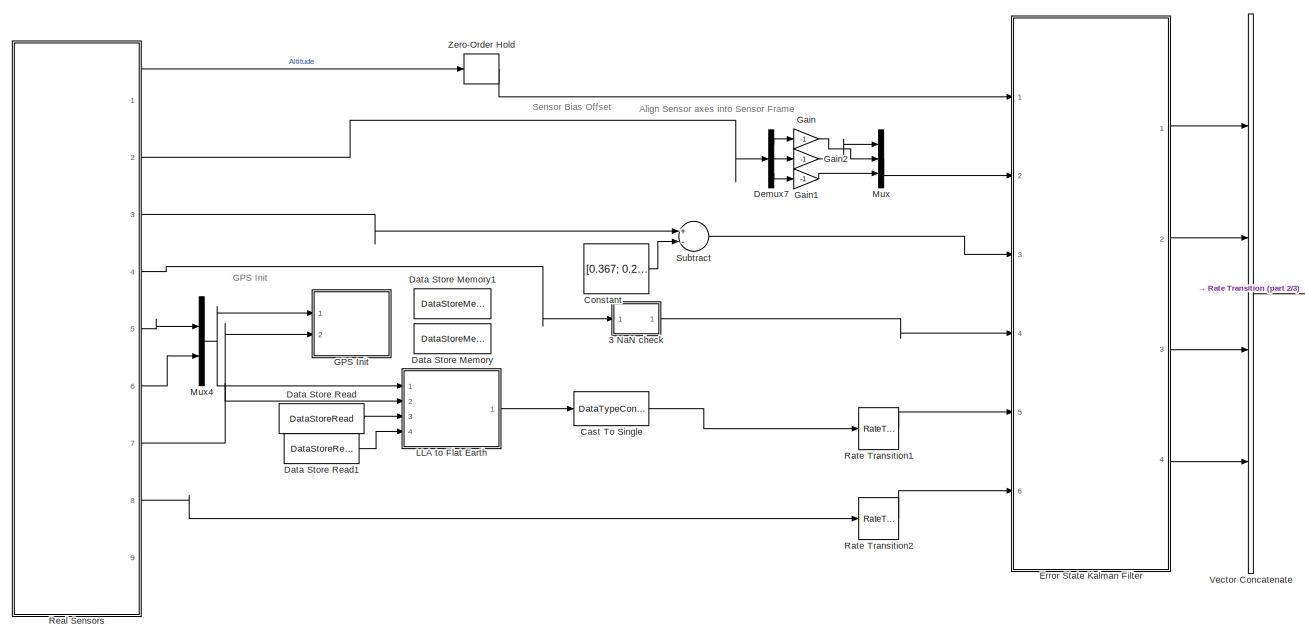
[diagram: root canvas - part 1/3, top center region]
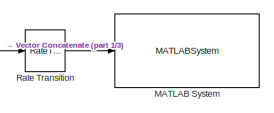
[diagram: root canvas - part 2/3, top right region]
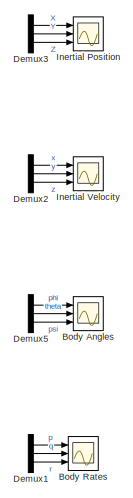
[diagram: root canvas - part 3/3, bottom right region]
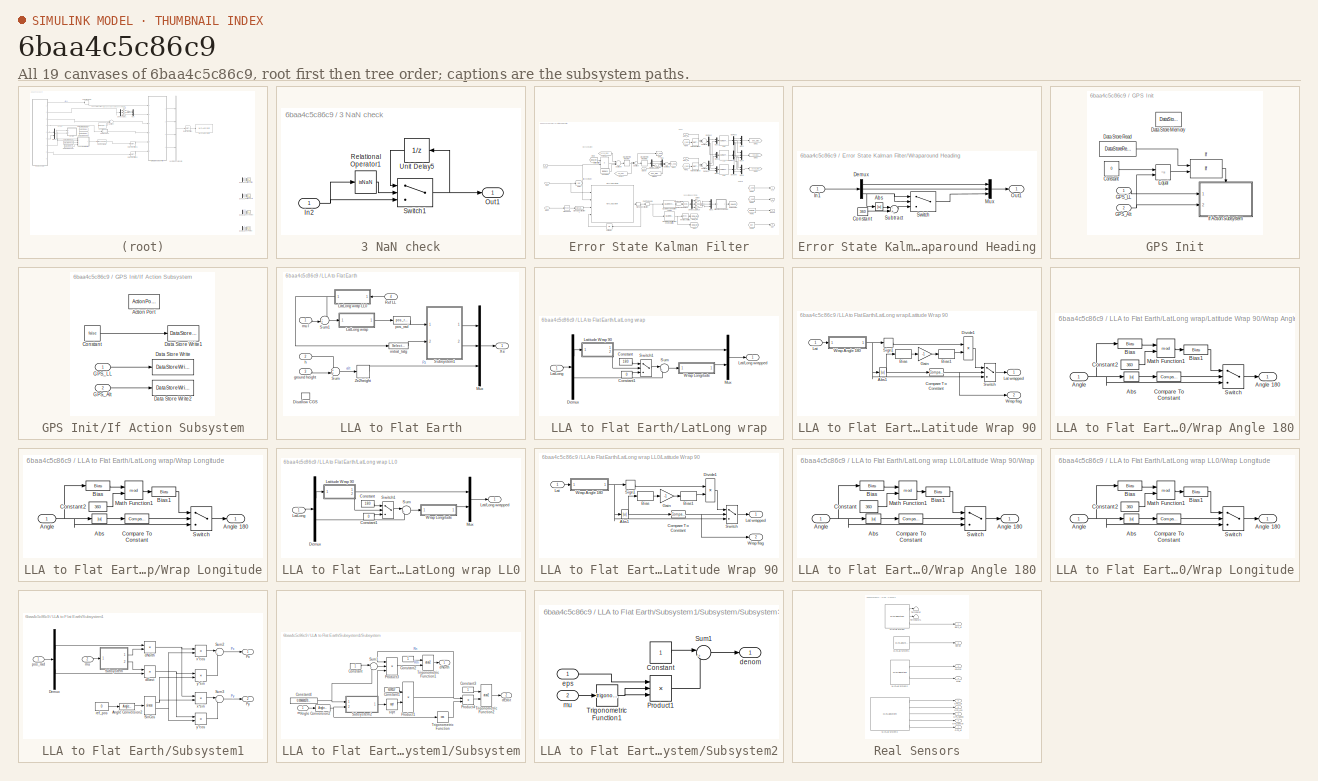
[diagram: thumbnail index - all 19 canvases of the model, root first then tree order]
MODEL slx_6baa4c5c86c9
KIND model
CONFIG AbsTol = auto
CONFIG EnableMultiTasking = on
CONFIG FixedStep = auto
CONFIG MaxStep = auto
CONFIG MinStep = auto
CONFIG RelTol = 1e-3
CONFIG SampleTimeConstraint = Unconstrained
CONFIG Solver = FixedStepAuto
CONFIG SolverName = FixedStepAuto
CONFIG StartTime = 0.0
CONFIG StopTime = inf
WORKSPACE source: MAT-file member
WORKSPACE MCOS: class17 (value not decoded)
WORKSPACE sensorProcessNoiseMatrix = [1 0 0 0.02 0 0 0.0002 0 0 0 0 0 ... (225 elements, 15x15)]
BLOCK [SubSystem] 3 NaN check
  Ports = [1, 1]
  RequestExecContextInheritance = off
BLOCK [Inport] 3 NaN check/In2
  IconDisplay = Port number
BLOCK [Outport] 3 NaN check/Out1
  IconDisplay = Port number
BLOCK [RelationalOperator] 3 NaN check/Relational Operator1
  InputSameDT = off
  Operator = isNaN
  OutDataTypeStr = boolean
  Ports = [1, 1]
  RndMeth = Simplest
BLOCK [Switch] 3 NaN check/Switch1
  Criteria = u2 ~= 0
  InputSameDT = off
  SaturateOnIntegerOverflow = off
BLOCK [UnitDelay] 3 NaN check/Unit Delay5
  HasFrameUpgradeWarning = on
  InitialCondition = [0; 0; 0]
  SampleTime = -1
BLOCK [Scope] Body Angles
  Commented = on
  Floating = off
  NumInputPorts = 3
  Ports = [3]
  ScopeSpecificationString = Simulink.scopes.TimeScopeBlockCfg('CurrentConfiguration', extmgr.ConfigurationSet(extmgr.Configuration('Core','General UI',true),extmgr.Configuration('Core','Source UI',true),extmgr.Configuration('Sources','WiredSimulink',true,'DataLoggingVariableName','ScopeData1'),extmgr.Configuration('Visuals','Time Domain',true,'SerializedDisplays',{struct('MinYLimReal','-60.39943','MaxYLimReal','406.57107','Y...<+1507ch>
BLOCK [Scope] Body Rates
  Commented = on
  Floating = off
  NumInputPorts = 3
  Ports = [3]
  ScopeSpecificationString = Simulink.scopes.TimeScopeBlockCfg('CurrentConfiguration', extmgr.ConfigurationSet(extmgr.Configuration('Core','General UI',true),extmgr.Configuration('Core','Source UI',true),extmgr.Configuration('Sources','WiredSimulink',true,'DataLoggingVariableName','ScopeData2'),extmgr.Configuration('Visuals','Time Domain',true,'SerializedDisplays',{struct('MinYLimReal','-3.28505','MaxYLimReal','2.55787','YLab...<+1490ch>
BLOCK [DataTypeConversion] Cast To Single
  OutDataTypeStr = single
  RndMeth = Simplest
  SaturateOnIntegerOverflow = off
BLOCK [Constant] Constant
  Value = [0.367; 0.248; -0.0955]
  VectorParams1D = off
BLOCK [DataStoreMemory] Data Store Memory
  DataStoreName = GPS_ref_height
  OutDataTypeStr = single
  ReadBeforeWriteMsg = warning
  ShowAdditionalParam = off
  SignalType = real
  WriteAfterReadMsg = warning
  WriteAfterWriteMsg = warning
BLOCK [DataStoreMemory] Data Store Memory1
  DataStoreName = GPS_Init_LL
  InitialValue = [0 0]
  OutDataTypeStr = single
  ReadBeforeWriteMsg = warning
  ShowAdditionalParam = off
  WriteAfterReadMsg = warning
  WriteAfterWriteMsg = warning
BLOCK [DataStoreRead] Data Store Read
  DataStoreElements = GPS_ref_height
  DataStoreName = GPS_ref_height
  Ports = [0, 1]
BLOCK [DataStoreRead] Data Store Read1
  DataStoreName = GPS_Init_LL
  Ports = [0, 1]
BLOCK [Demux] Demux1
  Commented = on
  DisplayOption = bar
  Outputs = 3
  Ports = [1, 3]
BLOCK [Demux] Demux2
  Commented = on
  DisplayOption = bar
  Outputs = 3
  Ports = [1, 3]
BLOCK [Demux] Demux3
  Commented = on
  DisplayOption = bar
  Outputs = 3
  Ports = [1, 3]
BLOCK [Demux] Demux5
  Commented = on
  DisplayOption = bar
  Outputs = 3
  Ports = [1, 3]
BLOCK [Demux] Demux7
  DisplayOption = bar
  Outputs = 3
  Ports = [1, 3]
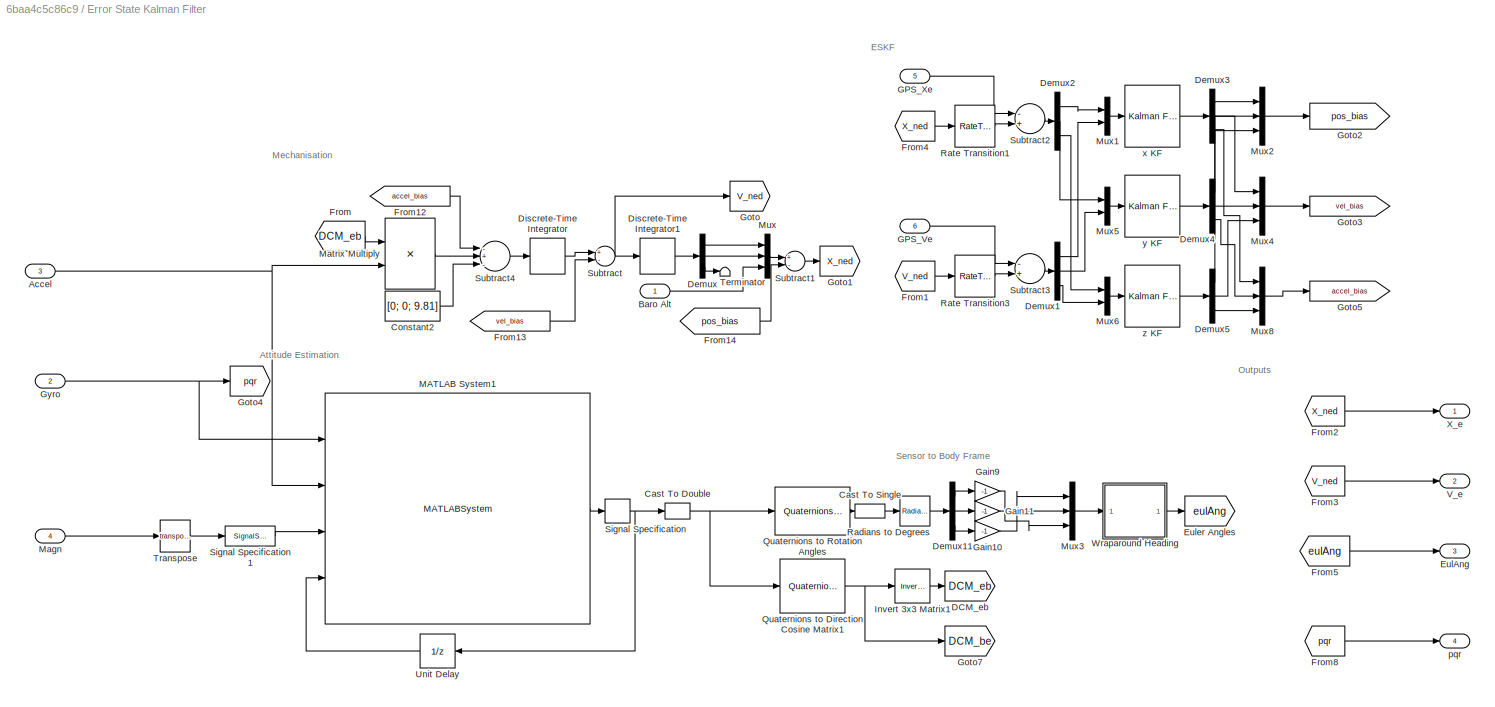
BLOCK [SubSystem] Error State Kalman Filter
  Ports = [6, 4]
  RequestExecContextInheritance = off
BLOCK [Inport] Error State Kalman Filter/Accel
  IconDisplay = Port number
  Port = 3
BLOCK [Inport] Error State Kalman Filter/Baro Alt
  IconDisplay = Port number
BLOCK [DataTypeConversion] Error State Kalman Filter/Cast To Double
  OutDataTypeStr = double
  RndMeth = Floor
  SaturateOnIntegerOverflow = off
BLOCK [DataTypeConversion] Error State Kalman Filter/Cast To Single
  OutDataTypeStr = single
  RndMeth = Floor
  SaturateOnIntegerOverflow = off
BLOCK [Constant] Error State Kalman Filter/Constant2
  OutDataTypeStr = single
  Value = [0; 0; 9.81]
  VectorParams1D = off
BLOCK [Goto] Error State Kalman Filter/DCM_eb
  GotoTag = DCM_eb
BLOCK [Demux] Error State Kalman Filter/Demux
  DisplayOption = bar
  Outputs = 3
  Ports = [1, 3]
BLOCK [Demux] Error State Kalman Filter/Demux1
  DisplayOption = bar
  Outputs = 3
  Ports = [1, 3]
BLOCK [Demux] Error State Kalman Filter/Demux11
  DisplayOption = bar
  Outputs = 3
  Ports = [1, 3]
BLOCK [Demux] Error State Kalman Filter/Demux2
  DisplayOption = bar
  Outputs = 3
  Ports = [1, 3]
BLOCK [Demux] Error State Kalman Filter/Demux3
  DisplayOption = bar
  Outputs = 3
  Ports = [1, 3]
BLOCK [Demux] Error State Kalman Filter/Demux4
  DisplayOption = bar
  Outputs = 3
  Ports = [1, 3]
BLOCK [Demux] Error State Kalman Filter/Demux5
  DisplayOption = bar
  Outputs = 3
  Ports = [1, 3]
BLOCK [DiscreteIntegrator] Error State Kalman Filter/Discrete-Time Integrator
  ICPrevOutput = DiscIntNeverNeededParam
  ICPrevScaledInput = DiscIntNeverNeededParam
  InitialConditionSetting = Auto
  Ports = [1, 1]
  SampleTime = -1
  gainval = 1
BLOCK [DiscreteIntegrator] Error State Kalman Filter/Discrete-Time Integrator1
  ICPrevOutput = DiscIntNeverNeededParam
  ICPrevScaledInput = DiscIntNeverNeededParam
  InitialConditionSetting = Auto
  OutDataTypeStr = single
  Ports = [1, 1]
  SampleTime = -1
  gainval = 1
BLOCK [Outport] Error State Kalman Filter/EulAng
  IconDisplay = Port number
  Port = 3
BLOCK [Goto] Error State Kalman Filter/Euler Angles
  GotoTag = eulAng
BLOCK [From] Error State Kalman Filter/From
  GotoTag = DCM_eb
BLOCK [From] Error State Kalman Filter/From1
  GotoTag = V_ned
BLOCK [From] Error State Kalman Filter/From12
  GotoTag = accel_bias
BLOCK [From] Error State Kalman Filter/From13
  GotoTag = vel_bias
BLOCK [From] Error State Kalman Filter/From14
  GotoTag = pos_bias
BLOCK [From] Error State Kalman Filter/From2
  GotoTag = X_ned
BLOCK [From] Error State Kalman Filter/From3
  GotoTag = V_ned
BLOCK [From] Error State Kalman Filter/From4
  GotoTag = X_ned
BLOCK [From] Error State Kalman Filter/From5
  GotoTag = eulAng
BLOCK [From] Error State Kalman Filter/From8
  GotoTag = pqr
BLOCK [Inport] Error State Kalman Filter/GPS_Ve
  IconDisplay = Port number
  Port = 6
  VarSizeSig = No
BLOCK [Inport] Error State Kalman Filter/GPS_Xe
  IconDisplay = Port number
  Port = 5
  VarSizeSig = No
BLOCK [Gain] Error State Kalman Filter/Gain10
  Commented = through
  Gain = -1
  OutDataTypeStr = Inherit: Inherit via internal rule
  ParamDataTypeStr = Inherit: Inherit via internal rule
  SaturateOnIntegerOverflow = off
BLOCK [Gain] Error State Kalman Filter/Gain11
  Gain = -1
  OutDataTypeStr = Inherit: Inherit via internal rule
  ParamDataTypeStr = Inherit: Inherit via internal rule
  SaturateOnIntegerOverflow = off
BLOCK [Gain] Error State Kalman Filter/Gain9
  Gain = -1
  OutDataTypeStr = Inherit: Inherit via internal rule
  ParamDataTypeStr = Inherit: Inherit via internal rule
  SaturateOnIntegerOverflow = off
BLOCK [Goto] Error State Kalman Filter/Goto
  GotoTag = V_ned
BLOCK [Goto] Error State Kalman Filter/Goto1
  GotoTag = X_ned
BLOCK [Goto] Error State Kalman Filter/Goto2
  GotoTag = pos_bias
BLOCK [Goto] Error State Kalman Filter/Goto3
  GotoTag = vel_bias
BLOCK [Goto] Error State Kalman Filter/Goto4
  GotoTag = pqr
BLOCK [Goto] Error State Kalman Filter/Goto5
  GotoTag = accel_bias
BLOCK [Goto] Error State Kalman Filter/Goto7
  GotoTag = DCM_be
BLOCK [Inport] Error State Kalman Filter/Gyro
  IconDisplay = Port number
  Port = 2
BLOCK [Reference] Error State Kalman Filter/Invert 3x3 Matrix1  REF=aerolibutil/Invert 
3x3 Matrix
  Ports = [1, 1]
  SourceBlock = aerolibutil/Invert \n3x3 Matrix
  SourceProductBaseCode = AE
  SourceProductName = Aerospace Blockset
  SourceType = Invert 3x3 Matrix
BLOCK [MATLABSystem] Error State Kalman Filter/MATLAB System1
  Beta = 1
  MaskDisplay = disp('MadgwickAHRSFilter');\nport_label('input',1,'Gyroscope');\nport_label('input',2,'Accelerometer');\nport_label('input',3,'Magnetometer');\nport_label('input',4,'q');\nport_label('output',1,'quat');
  MaskType = MadgwickAHRSFilter
  Ports = [4, 1]
  SamplePeriod = sensorSampleTime
  SimulateUsing = Code generation
  System = MadgwickAHRSFilter
BLOCK [Inport] Error State Kalman Filter/Magn
  IconDisplay = Port number
  Port = 4
BLOCK [Product] Error State Kalman Filter/Matrix Multiply
  InputSameDT = off
  Multiplication = Matrix(*)
  OutDataTypeStr = single
  Ports = [2, 1]
  RndMeth = Simplest
  SaturateOnIntegerOverflow = off
BLOCK [Mux] Error State Kalman Filter/Mux
  DisplayOption = bar
  Inputs = 3
  Ports = [3, 1]
BLOCK [Mux] Error State Kalman Filter/Mux1
  DisplayOption = bar
  Inputs = 2
  Ports = [2, 1]
BLOCK [Mux] Error State Kalman Filter/Mux2
  DisplayOption = bar
  Inputs = 3
  Ports = [3, 1]
BLOCK [Mux] Error State Kalman Filter/Mux3
  DisplayOption = bar
  Inputs = 3
  Ports = [3, 1]
BLOCK [Mux] Error State Kalman Filter/Mux4
  DisplayOption = bar
  Inputs = 3
  Ports = [3, 1]
BLOCK [Mux] Error State Kalman Filter/Mux5
  DisplayOption = bar
  Inputs = 2
  Ports = [2, 1]
BLOCK [Mux] Error State Kalman Filter/Mux6
  DisplayOption = bar
  Inputs = 2
  Ports = [2, 1]
BLOCK [Mux] Error State Kalman Filter/Mux8
  DisplayOption = bar
  Inputs = 3
  Ports = [3, 1]
BLOCK [Reference] Error State Kalman Filter/Quaternions to Direction Cosine Matrix1  REF=sharedtransform/Quaternions to 
Direction Cosine Matrix
  Ports = [1, 1]
  SourceBlock = sharedtransform/Quaternions to \nDirection Cosine Matrix
  SourceProductBaseCode = AE
  SourceProductName = Aerospace Blockset
  SourceType = Quaternion2DCM
BLOCK [Reference] Error State Kalman Filter/Quaternions to Rotation Angles  REF=sharedtransform/Quaternions to Rotation Angles
  AttributesFormatString = Rotation Order: %<rotationOrder>
  Ports = [1, 1]
  SourceBlock = sharedtransform/Quaternions to Rotation Angles
  SourceProductBaseCode = AE
  SourceProductName = Aerospace Blockset
  SourceType = Quat2Ang
BLOCK [Reference] Error State Kalman Filter/Radians to Degrees  REF=simulink_extras/Transformations/Radians
to Degrees
  Ports = [1, 1]
  SourceBlock = simulink_extras/Transformations/Radians\nto Degrees
  SourceProductBaseCode = SL
  SourceProductName = Simulink
  SourceType = RadiansToDegrees
BLOCK [RateTransition] Error State Kalman Filter/Rate Transition1
  OutPortSampleTime = 1
BLOCK [RateTransition] Error State Kalman Filter/Rate Transition3
  OutPortSampleTime = 1
BLOCK [SignalSpecification] Error State Kalman Filter/Signal Specification
  Dimensions = [1 4]
  OutDataTypeStr = single
  VarSizeSig = No
BLOCK [SignalSpecification] Error State Kalman Filter/Signal Specification1
  Dimensions = [1 3]
  OutDataTypeStr = single
  VarSizeSig = No
BLOCK [Sum] Error State Kalman Filter/Subtract
  InputSameDT = off
  Inputs = +-
  OutDataTypeStr = Inherit: Inherit via internal rule
  Ports = [2, 1]
  SaturateOnIntegerOverflow = off
BLOCK [Sum] Error State Kalman Filter/Subtract1
  InputSameDT = off
  Inputs = +-
  OutDataTypeStr = Inherit: Inherit via internal rule
  Ports = [2, 1]
  SaturateOnIntegerOverflow = off
BLOCK [Sum] Error State Kalman Filter/Subtract2
  AccumDataTypeStr = single
  InputSameDT = off
  Inputs = -+
  OutDataTypeStr = single
  Ports = [2, 1]
  RndMeth = Simplest
  SaturateOnIntegerOverflow = off
BLOCK [Sum] Error State Kalman Filter/Subtract3
  AccumDataTypeStr = single
  InputSameDT = off
  Inputs = -+
  OutDataTypeStr = single
  Ports = [2, 1]
  RndMeth = Simplest
  SaturateOnIntegerOverflow = off
BLOCK [Sum] Error State Kalman Filter/Subtract4
  AccumDataTypeStr = single
  InputSameDT = off
  Inputs = -+-
  OutDataTypeStr = Inherit: Inherit via internal rule
  Ports = [3, 1]
  SaturateOnIntegerOverflow = off
BLOCK [Terminator] Error State Kalman Filter/Terminator
BLOCK [Math] Error State Kalman Filter/Transpose
  Operator = transpose
  Ports = [1, 1]
BLOCK [UnitDelay] Error State Kalman Filter/Unit Delay
  HasFrameUpgradeWarning = on
  InitialCondition = [1 0 0 0]
  SampleTime = sensorSampleTime
BLOCK [Outport] Error State Kalman Filter/V_e
  IconDisplay = Port number
  Port = 2
BLOCK [SubSystem] Error State Kalman Filter/Wraparound Heading
  Ports = [1, 1]
  RequestExecContextInheritance = off
BLOCK [Abs] Error State Kalman Filter/Wraparound Heading/Abs
  SaturateOnIntegerOverflow = off
BLOCK [Constant] Error State Kalman Filter/Wraparound Heading/Constant
  OutDataTypeStr = single
  Value = 360
BLOCK [Demux] Error State Kalman Filter/Wraparound Heading/Demux
  DisplayOption = bar
  Outputs = 3
  Ports = [1, 3]
BLOCK [Inport] Error State Kalman Filter/Wraparound Heading/In1
  IconDisplay = Port number
BLOCK [Mux] Error State Kalman Filter/Wraparound Heading/Mux
  DisplayOption = bar
  Inputs = 3
  Ports = [3, 1]
BLOCK [Outport] Error State Kalman Filter/Wraparound Heading/Out1
  IconDisplay = Port number
BLOCK [Sum] Error State Kalman Filter/Wraparound Heading/Subtract
  InputSameDT = off
  Inputs = -+
  OutDataTypeStr = Inherit: Inherit via internal rule
  Ports = [2, 1]
  SaturateOnIntegerOverflow = off
BLOCK [Switch] Error State Kalman Filter/Wraparound Heading/Switch
  Criteria = u2 > Threshold
  InputSameDT = off
  OutDataTypeStr = single
  SaturateOnIntegerOverflow = off
BLOCK [Outport] Error State Kalman Filter/X_e
  IconDisplay = Port number
BLOCK [Outport] Error State Kalman Filter/pqr
  IconDisplay = Port number
  Port = 4
BLOCK [Reference] Error State Kalman Filter/x KF  REF=ctrlSharedLib/Kalman Filter
  Ports = [1, 1]
  SourceBlock = ctrlSharedLib/Kalman Filter
  SourceProductBaseCode = CT
  SourceProductName = Control System Toolbox
  SourceType = ctrlKalmanFilter
BLOCK [Reference] Error State Kalman Filter/y KF  REF=ctrlSharedLib/Kalman Filter
  Ports = [1, 1]
  SourceBlock = ctrlSharedLib/Kalman Filter
  SourceProductBaseCode = CT
  SourceProductName = Control System Toolbox
  SourceType = ctrlKalmanFilter
BLOCK [Reference] Error State Kalman Filter/z KF  REF=ctrlSharedLib/Kalman Filter
  Ports = [1, 1]
  SourceBlock = ctrlSharedLib/Kalman Filter
  SourceProductBaseCode = CT
  SourceProductName = Control System Toolbox
  SourceType = ctrlKalmanFilter
BLOCK [SubSystem] GPS Init
  Ports = [2]
  RequestExecContextInheritance = off
BLOCK [Constant] GPS Init/Constant
  OutDataTypeStr = single
  Value = 0
BLOCK [DataStoreMemory] GPS Init/Data Store Memory
  DataStoreName = GPS_init
  InitialValue = true
  OutDataTypeStr = boolean
  ReadBeforeWriteMsg = warning
  ShowAdditionalParam = off
  WriteAfterReadMsg = warning
  WriteAfterWriteMsg = warning
BLOCK [DataStoreRead] GPS Init/Data Store Read
  DataStoreElements = GPS_init
  DataStoreName = GPS_init
  Ports = [0, 1]
BLOCK [RelationalOperator] GPS Init/Equal
  InputSameDT = off
  Operator = ~=
  OutDataTypeStr = boolean
  Ports = [2, 1]
  RndMeth = Simplest
BLOCK [Inport] GPS Init/GPS_Alt
  IconDisplay = Port number
  Port = 2
BLOCK [Inport] GPS Init/GPS_LL
  IconDisplay = Port number
BLOCK [If] GPS Init/If
  IfExpression = u1 & u2
  NumInputs = 2
  Ports = [2, 1]
  ShowElse = off
BLOCK [SubSystem] GPS Init/If Action Subsystem
  Ports = [2, 0, 0, 0, 0, 0, 0, 1]
  RequestExecContextInheritance = off
  TreatAsAtomicUnit = on
BLOCK [ActionPort] GPS Init/If Action Subsystem/Action Port
  ActionPortLabel = if(u1 & u2)
BLOCK [Constant] GPS Init/If Action Subsystem/Constant
  Value = false
BLOCK [DataStoreWrite] GPS Init/If Action Subsystem/Data Store Write
  DataStoreName = GPS_Init_LL
  Ports = [1]
BLOCK [DataStoreWrite] GPS Init/If Action Subsystem/Data Store Write1
  DataStoreName = GPS_init
  Ports = [1]
BLOCK [DataStoreWrite] GPS Init/If Action Subsystem/Data Store Write2
  DataStoreElements = GPS_ref_height
  DataStoreName = GPS_ref_height
  Ports = [1]
BLOCK [Inport] GPS Init/If Action Subsystem/GPS_Alt
  IconDisplay = Port number
  Port = 2
BLOCK [Inport] GPS Init/If Action Subsystem/GPS_LL
  IconDisplay = Port number
BLOCK [Gain] Gain
  Gain = -1
  OutDataTypeStr = Inherit: Inherit via internal rule
  ParamDataTypeStr = Inherit: Inherit via internal rule
  SaturateOnIntegerOverflow = off
BLOCK [Gain] Gain1
  Commented = through
  Gain = -1
  OutDataTypeStr = Inherit: Inherit via internal rule
  ParamDataTypeStr = Inherit: Inherit via internal rule
  SaturateOnIntegerOverflow = off
BLOCK [Gain] Gain2
  Commented = through
  Gain = -1
  OutDataTypeStr = Inherit: Inherit via internal rule
  ParamDataTypeStr = Inherit: Inherit via internal rule
  SaturateOnIntegerOverflow = off
BLOCK [Scope] Inertial Position
  Commented = on
  Floating = off
  NumInputPorts = 3
  Ports = [3]
  ScopeSpecificationString = Simulink.scopes.TimeScopeBlockCfg('CurrentConfiguration', extmgr.ConfigurationSet(extmgr.Configuration('Core','General UI',true),extmgr.Configuration('Core','Source UI',true),extmgr.Configuration('Sources','WiredSimulink',true,'DataLoggingVariableName','ScopeData3'),extmgr.Configuration('Visuals','Time Domain',true,'SerializedDisplays',{struct('MinYLimReal','-947970.52148','MaxYLimReal','6253006.7...<+1534ch>
BLOCK [Scope] Inertial Velocity
  Commented = on
  Floating = off
  NumInputPorts = 3
  Ports = [3]
  ScopeSpecificationString = Simulink.scopes.TimeScopeBlockCfg('CurrentConfiguration', extmgr.ConfigurationSet(extmgr.Configuration('Core','General UI',true),extmgr.Configuration('Core','Source UI',true),extmgr.Configuration('Sources','WiredSimulink',true),extmgr.Configuration('Visuals','Time Domain',true,'SerializedDisplays',{struct('MinYLimReal','-478.6962','MaxYLimReal','332.81537','YLabelReal','','MinYLimMag',' 0.00000','...<+1463ch>
BLOCK [SubSystem] LLA to Flat Earth
  Ports = [4, 1]
  RequestExecContextInheritance = off
BLOCK [UnitConfiguration] LLA to Flat Earth/Disallow CGS
  AllowAllUnitSystems = off
  UnitSystemsStr = English,SI,SI (extended)
BLOCK [SubSystem] LLA to Flat Earth/LatLong wrap
  AncestorBlock = aerolibtransform2sys/LatLong wrap
  Ports = [1, 1]
  RequestExecContextInheritance = off
BLOCK [SubSystem] LLA to Flat Earth/LatLong wrap LL0
  AncestorBlock = aerolibtransform2sys/LatLong wrap
  Ports = [1, 1]
  RequestExecContextInheritance = off
BLOCK [Constant] LLA to Flat Earth/LatLong wrap LL0/Constant
  OutDataTypeStr = single
  Value = 180
BLOCK [Constant] LLA to Flat Earth/LatLong wrap LL0/Constant1
  OutDataTypeStr = single
  Value = 0
BLOCK [Demux] LLA to Flat Earth/LatLong wrap LL0/Demux
  DisplayOption = bar
  Outputs = 2
  Ports = [1, 2]
BLOCK [Outport] LLA to Flat Earth/LatLong wrap LL0/Lat//Long wrapped
  IconDisplay = Port number
BLOCK [Inport] LLA to Flat Earth/LatLong wrap LL0/LatLong
  IconDisplay = Port number
BLOCK [SubSystem] LLA to Flat Earth/LatLong wrap LL0/Latitude Wrap 90
  AncestorBlock = aerolibtransform2sys/Latitude Wrap 90
  Ports = [1, 2]
  RequestExecContextInheritance = off
BLOCK [Abs] LLA to Flat Earth/LatLong wrap LL0/Latitude Wrap 90/Abs1
  SaturateOnIntegerOverflow = off
BLOCK [Bias] LLA to Flat Earth/LatLong wrap LL0/Latitude Wrap 90/Bias
  Bias = -90
  SaturateOnIntegerOverflow = off
BLOCK [Bias] LLA to Flat Earth/LatLong wrap LL0/Latitude Wrap 90/Bias1
  Bias = +90
  SaturateOnIntegerOverflow = off
BLOCK [Reference] LLA to Flat Earth/LatLong wrap LL0/Latitude Wrap 90/Compare To Constant  REF=simulink/Logic and Bit
Operations/Compare
To Constant
  Ports = [1, 1]
  SourceBlock = simulink/Logic and Bit\nOperations/Compare\nTo Constant
  SourceProductBaseCode = SL
  SourceProductName = Simulink
  SourceType = Compare To Constant
BLOCK [Product] LLA to Flat Earth/LatLong wrap LL0/Latitude Wrap 90/Divide1
  InputSameDT = off
  Inputs = **
  OutDataTypeStr = Inherit: Inherit via internal rule
  Ports = [2, 1]
  RndMeth = Floor
  SaturateOnIntegerOverflow = off
BLOCK [Gain] LLA to Flat Earth/LatLong wrap LL0/Latitude Wrap 90/Gain
  Gain = -1
  OutDataTypeStr = Inherit: Inherit via internal rule
  ParamDataTypeStr = Inherit: Inherit via internal rule
  SaturateOnIntegerOverflow = off
BLOCK [Inport] LLA to Flat Earth/LatLong wrap LL0/Latitude Wrap 90/Lat
  IconDisplay = Port number
BLOCK [Outport] LLA to Flat Earth/LatLong wrap LL0/Latitude Wrap 90/Lat wrapped
  IconDisplay = Port number
BLOCK [Signum] LLA to Flat Earth/LatLong wrap LL0/Latitude Wrap 90/Sign1
BLOCK [Switch] LLA to Flat Earth/LatLong wrap LL0/Latitude Wrap 90/Switch
  Criteria = u2 ~= 0
  InputSameDT = off
  SaturateOnIntegerOverflow = off
BLOCK [SubSystem] LLA to Flat Earth/LatLong wrap LL0/Latitude Wrap 90/Wrap Angle 180
  AncestorBlock = aerolibtransform2sys/Wrap Angle 180
  Ports = [1, 1]
  RequestExecContextInheritance = off
BLOCK [Abs] LLA to Flat Earth/LatLong wrap LL0/Latitude Wrap 90/Wrap Angle 180/Abs
  SaturateOnIntegerOverflow = off
BLOCK [Inport] LLA to Flat Earth/LatLong wrap LL0/Latitude Wrap 90/Wrap Angle 180/Angle
  IconDisplay = Port number
BLOCK [Outport] LLA to Flat Earth/LatLong wrap LL0/Latitude Wrap 90/Wrap Angle 180/Angle 180
  IconDisplay = Port number
BLOCK [Bias] LLA to Flat Earth/LatLong wrap LL0/Latitude Wrap 90/Wrap Angle 180/Bias
  Bias = 180
  SaturateOnIntegerOverflow = off
BLOCK [Bias] LLA to Flat Earth/LatLong wrap LL0/Latitude Wrap 90/Wrap Angle 180/Bias1
  Bias = -180
  SaturateOnIntegerOverflow = off
BLOCK [Reference] LLA to Flat Earth/LatLong wrap LL0/Latitude Wrap 90/Wrap Angle 180/Compare To Constant  REF=simulink/Logic and Bit
Operations/Compare
To Constant
  Ports = [1, 1]
  SourceBlock = simulink/Logic and Bit\nOperations/Compare\nTo Constant
  SourceProductBaseCode = SL
  SourceProductName = Simulink
  SourceType = Compare To Constant
BLOCK [Constant] LLA to Flat Earth/LatLong wrap LL0/Latitude Wrap 90/Wrap Angle 180/Constant
  OutDataTypeStr = single
  Value = 360
BLOCK [Math] LLA to Flat Earth/LatLong wrap LL0/Latitude Wrap 90/Wrap Angle 180/Math Function1
  Operator = mod
  Ports = [2, 1]
BLOCK [Switch] LLA to Flat Earth/LatLong wrap LL0/Latitude Wrap 90/Wrap Angle 180/Switch
  Criteria = u2 ~= 0
  InputSameDT = off
  SaturateOnIntegerOverflow = off
  Threshold = 180
BLOCK [Outport] LLA to Flat Earth/LatLong wrap LL0/Latitude Wrap 90/Wrap flag
  IconDisplay = Port number
  Port = 2
BLOCK [Mux] LLA to Flat Earth/LatLong wrap LL0/Mux
  DisplayOption = bar
  Inputs = 2
  Ports = [2, 1]
BLOCK [Sum] LLA to Flat Earth/LatLong wrap LL0/Sum
  IconShape = round
  InputSameDT = off
  Inputs = |++
  OutDataTypeStr = Inherit: Inherit via internal rule
  Ports = [2, 1]
  SaturateOnIntegerOverflow = off
BLOCK [Switch] LLA to Flat Earth/LatLong wrap LL0/Switch1
  Criteria = u2 ~= 0
  InputSameDT = off
  SaturateOnIntegerOverflow = off
BLOCK [SubSystem] LLA to Flat Earth/LatLong wrap LL0/Wrap Longitude
  AncestorBlock = aerolibtransform2sys/Wrap Angle 180
  Ports = [1, 1]
  RequestExecContextInheritance = off
BLOCK [Abs] LLA to Flat Earth/LatLong wrap LL0/Wrap Longitude/Abs
  SaturateOnIntegerOverflow = off
BLOCK [Inport] LLA to Flat Earth/LatLong wrap LL0/Wrap Longitude/Angle
  IconDisplay = Port number
BLOCK [Outport] LLA to Flat Earth/LatLong wrap LL0/Wrap Longitude/Angle 180
  IconDisplay = Port number
BLOCK [Bias] LLA to Flat Earth/LatLong wrap LL0/Wrap Longitude/Bias
  Bias = 180
  SaturateOnIntegerOverflow = off
BLOCK [Bias] LLA to Flat Earth/LatLong wrap LL0/Wrap Longitude/Bias1
  Bias = -180
  SaturateOnIntegerOverflow = off
BLOCK [Reference] LLA to Flat Earth/LatLong wrap LL0/Wrap Longitude/Compare To Constant  REF=simulink/Logic and Bit
Operations/Compare
To Constant
  Ports = [1, 1]
  SourceBlock = simulink/Logic and Bit\nOperations/Compare\nTo Constant
  SourceProductBaseCode = SL
  SourceProductName = Simulink
  SourceType = Compare To Constant
BLOCK [Constant] LLA to Flat Earth/LatLong wrap LL0/Wrap Longitude/Constant2
  OutDataTypeStr = single
  Value = 360
BLOCK [Math] LLA to Flat Earth/LatLong wrap LL0/Wrap Longitude/Math Function1
  Operator = mod
  Ports = [2, 1]
BLOCK [Switch] LLA to Flat Earth/LatLong wrap LL0/Wrap Longitude/Switch
  Criteria = u2 ~= 0
  InputSameDT = off
  SaturateOnIntegerOverflow = off
  Threshold = 180
BLOCK [Constant] LLA to Flat Earth/LatLong wrap/Constant
  OutDataTypeStr = single
  Value = 180
BLOCK [Constant] LLA to Flat Earth/LatLong wrap/Constant1
  OutDataTypeStr = single
  Value = 0
BLOCK [Demux] LLA to Flat Earth/LatLong wrap/Demux
  DisplayOption = bar
  Outputs = 2
  Ports = [1, 2]
BLOCK [Outport] LLA to Flat Earth/LatLong wrap/Lat//Long wrapped
  IconDisplay = Port number
  OutDataTypeStr = single
BLOCK [Inport] LLA to Flat Earth/LatLong wrap/LatLong
  IconDisplay = Port number
  OutDataTypeStr = single
BLOCK [SubSystem] LLA to Flat Earth/LatLong wrap/Latitude Wrap 90
  AncestorBlock = aerolibtransform2sys/Latitude Wrap 90
  Ports = [1, 2]
  RequestExecContextInheritance = off
BLOCK [Abs] LLA to Flat Earth/LatLong wrap/Latitude Wrap 90/Abs1
  SaturateOnIntegerOverflow = off
BLOCK [Bias] LLA to Flat Earth/LatLong wrap/Latitude Wrap 90/Bias
  Bias = -90
  SaturateOnIntegerOverflow = off
BLOCK [Bias] LLA to Flat Earth/LatLong wrap/Latitude Wrap 90/Bias1
  Bias = +90
  SaturateOnIntegerOverflow = off
BLOCK [Reference] LLA to Flat Earth/LatLong wrap/Latitude Wrap 90/Compare To Constant  REF=simulink/Logic and Bit
Operations/Compare
To Constant
  Ports = [1, 1]
  SourceBlock = simulink/Logic and Bit\nOperations/Compare\nTo Constant
  SourceProductBaseCode = SL
  SourceProductName = Simulink
  SourceType = Compare To Constant
BLOCK [Product] LLA to Flat Earth/LatLong wrap/Latitude Wrap 90/Divide1
  InputSameDT = off
  Inputs = **
  OutDataTypeStr = Inherit: Inherit via internal rule
  Ports = [2, 1]
  RndMeth = Floor
  SaturateOnIntegerOverflow = off
BLOCK [Gain] LLA to Flat Earth/LatLong wrap/Latitude Wrap 90/Gain
  Gain = -1
  OutDataTypeStr = Inherit: Inherit via internal rule
  ParamDataTypeStr = Inherit: Inherit via internal rule
  SaturateOnIntegerOverflow = off
BLOCK [Inport] LLA to Flat Earth/LatLong wrap/Latitude Wrap 90/Lat
  IconDisplay = Port number
BLOCK [Outport] LLA to Flat Earth/LatLong wrap/Latitude Wrap 90/Lat wrapped
  IconDisplay = Port number
BLOCK [Signum] LLA to Flat Earth/LatLong wrap/Latitude Wrap 90/Sign1
BLOCK [Switch] LLA to Flat Earth/LatLong wrap/Latitude Wrap 90/Switch
  Criteria = u2 ~= 0
  InputSameDT = off
  OutDataTypeStr = single
  SaturateOnIntegerOverflow = off
BLOCK [SubSystem] LLA to Flat Earth/LatLong wrap/Latitude Wrap 90/Wrap Angle 180
  AncestorBlock = aerolibtransform2sys/Wrap Angle 180
  Ports = [1, 1]
  RequestExecContextInheritance = off
BLOCK [Abs] LLA to Flat Earth/LatLong wrap/Latitude Wrap 90/Wrap Angle 180/Abs
  SaturateOnIntegerOverflow = off
BLOCK [Inport] LLA to Flat Earth/LatLong wrap/Latitude Wrap 90/Wrap Angle 180/Angle
  IconDisplay = Port number
BLOCK [Outport] LLA to Flat Earth/LatLong wrap/Latitude Wrap 90/Wrap Angle 180/Angle 180
  IconDisplay = Port number
BLOCK [Bias] LLA to Flat Earth/LatLong wrap/Latitude Wrap 90/Wrap Angle 180/Bias
  Bias = 180
  SaturateOnIntegerOverflow = off
BLOCK [Bias] LLA to Flat Earth/LatLong wrap/Latitude Wrap 90/Wrap Angle 180/Bias1
  Bias = -180
  SaturateOnIntegerOverflow = off
BLOCK [Reference] LLA to Flat Earth/LatLong wrap/Latitude Wrap 90/Wrap Angle 180/Compare To Constant  REF=simulink/Logic and Bit
Operations/Compare
To Constant
  Ports = [1, 1]
  SourceBlock = simulink/Logic and Bit\nOperations/Compare\nTo Constant
  SourceProductBaseCode = SL
  SourceProductName = Simulink
  SourceType = Compare To Constant
BLOCK [Constant] LLA to Flat Earth/LatLong wrap/Latitude Wrap 90/Wrap Angle 180/Constant2
  OutDataTypeStr = single
  Value = 360
BLOCK [Math] LLA to Flat Earth/LatLong wrap/Latitude Wrap 90/Wrap Angle 180/Math Function1
  Operator = mod
  Ports = [2, 1]
BLOCK [Switch] LLA to Flat Earth/LatLong wrap/Latitude Wrap 90/Wrap Angle 180/Switch
  Criteria = u2 ~= 0
  InputSameDT = off
  SaturateOnIntegerOverflow = off
  Threshold = 180
BLOCK [Outport] LLA to Flat Earth/LatLong wrap/Latitude Wrap 90/Wrap flag
  IconDisplay = Port number
  Port = 2
BLOCK [Mux] LLA to Flat Earth/LatLong wrap/Mux
  DisplayOption = bar
  Inputs = 2
  Ports = [2, 1]
BLOCK [Sum] LLA to Flat Earth/LatLong wrap/Sum
  IconShape = round
  InputSameDT = off
  Inputs = |++
  OutDataTypeStr = Inherit: Inherit via internal rule
  Ports = [2, 1]
  SaturateOnIntegerOverflow = off
BLOCK [Switch] LLA to Flat Earth/LatLong wrap/Switch1
  Criteria = u2 ~= 0
  InputSameDT = off
  OutDataTypeStr = single
  SaturateOnIntegerOverflow = off
BLOCK [SubSystem] LLA to Flat Earth/LatLong wrap/Wrap Longitude
  AncestorBlock = aerolibtransform2sys/Wrap Angle 180
  Ports = [1, 1]
  RequestExecContextInheritance = off
BLOCK [Abs] LLA to Flat Earth/LatLong wrap/Wrap Longitude/Abs
  SaturateOnIntegerOverflow = off
BLOCK [Inport] LLA to Flat Earth/LatLong wrap/Wrap Longitude/Angle
  IconDisplay = Port number
BLOCK [Outport] LLA to Flat Earth/LatLong wrap/Wrap Longitude/Angle 180
  IconDisplay = Port number
BLOCK [Bias] LLA to Flat Earth/LatLong wrap/Wrap Longitude/Bias
  Bias = 180
  SaturateOnIntegerOverflow = off
BLOCK [Bias] LLA to Flat Earth/LatLong wrap/Wrap Longitude/Bias1
  Bias = -180
  SaturateOnIntegerOverflow = off
BLOCK [Reference] LLA to Flat Earth/LatLong wrap/Wrap Longitude/Compare To Constant  REF=simulink/Logic and Bit
Operations/Compare
To Constant
  Ports = [1, 1]
  SourceBlock = simulink/Logic and Bit\nOperations/Compare\nTo Constant
  SourceProductBaseCode = SL
  SourceProductName = Simulink
  SourceType = Compare To Constant
BLOCK [Constant] LLA to Flat Earth/LatLong wrap/Wrap Longitude/Constant2
  OutDataTypeStr = single
  Value = 360
BLOCK [Math] LLA to Flat Earth/LatLong wrap/Wrap Longitude/Math Function1
  Operator = mod
  Ports = [2, 1]
BLOCK [Switch] LLA to Flat Earth/LatLong wrap/Wrap Longitude/Switch
  Criteria = u2 ~= 0
  InputSameDT = off
  SaturateOnIntegerOverflow = off
  Threshold = 180
BLOCK [Mux] LLA to Flat Earth/Mux
  DisplayOption = bar
  Inputs = 3
  Ports = [3, 1]
BLOCK [Inport] LLA to Flat Earth/Ref LL
  IconDisplay = Port number
  Port = 4
BLOCK [SubSystem] LLA to Flat Earth/Subsystem1
  Ports = [2, 2]
  RequestExecContextInheritance = off
BLOCK [Reference] LLA to Flat Earth/Subsystem1/Angle Conversion2  REF=aerolibtransform2/LLA to Flat Earth/Subsystem/Angle Conversion2
  Ports = [1, 1]
  SourceBlock = aerolibtransform2/LLA to Flat Earth/Subsystem/Angle Conversion2
  SourceProductBaseCode = AE
  SourceProductName = Aerospace Blockset
  SourceType = SubSystem
BLOCK [Demux] LLA to Flat Earth/Subsystem1/Demux
  DisplayOption = bar
  Outputs = 2
  Ports = [1, 2]
BLOCK [Outport] LLA to Flat Earth/Subsystem1/Px
  IconDisplay = Port number
BLOCK [Outport] LLA to Flat Earth/Subsystem1/Py
  IconDisplay = Port number
  Port = 2
BLOCK [Trigonometry] LLA to Flat Earth/Subsystem1/SinCos
  Operator = sincos
  Ports = [1, 2]
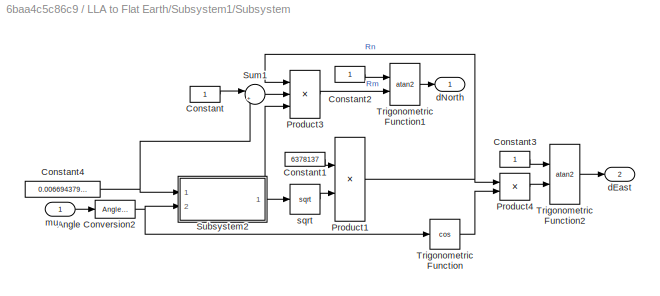
BLOCK [SubSystem] LLA to Flat Earth/Subsystem1/Subsystem
  Ports = [1, 2]
  RequestExecContextInheritance = off
BLOCK [Reference] LLA to Flat Earth/Subsystem1/Subsystem/Angle Conversion2  REF=aerolibtransform2/LLA to Flat Earth/Subsystem/Find Radian//Distance/Angle Conversion2
  Ports = [1, 1]
  SourceBlock = aerolibtransform2/LLA to Flat Earth/Subsystem/Find Radian//Distance/Angle Conversion2
  SourceProductBaseCode = AE
  SourceProductName = Aerospace Blockset
  SourceType = SubSystem
BLOCK [Constant] LLA to Flat Earth/Subsystem1/Subsystem/Constant
  OutDataTypeStr = single
BLOCK [Constant] LLA to Flat Earth/Subsystem1/Subsystem/Constant1
  OutDataTypeStr = single
  Value = 6378137
BLOCK [Constant] LLA to Flat Earth/Subsystem1/Subsystem/Constant2
  OutDataTypeStr = single
BLOCK [Constant] LLA to Flat Earth/Subsystem1/Subsystem/Constant3
  OutDataTypeStr = single
BLOCK [Constant] LLA to Flat Earth/Subsystem1/Subsystem/Constant4
  OutDataTypeStr = single
  Value = 0.00669437999
BLOCK [Product] LLA to Flat Earth/Subsystem1/Subsystem/Product1
  InputSameDT = off
  Inputs = */
  OutDataTypeStr = Inherit: Inherit via internal rule
  Ports = [2, 1]
  SaturateOnIntegerOverflow = off
BLOCK [Product] LLA to Flat Earth/Subsystem1/Subsystem/Product3
  InputSameDT = off
  Inputs = **/
  OutDataTypeStr = single
  Ports = [3, 1]
  SaturateOnIntegerOverflow = off
BLOCK [Product] LLA to Flat Earth/Subsystem1/Subsystem/Product4
  InputSameDT = off
  OutDataTypeStr = Inherit: Inherit via internal rule
  Ports = [2, 1]
  SaturateOnIntegerOverflow = off
BLOCK [SubSystem] LLA to Flat Earth/Subsystem1/Subsystem/Subsystem2
  Ports = [2, 1]
  RequestExecContextInheritance = off
BLOCK [Constant] LLA to Flat Earth/Subsystem1/Subsystem/Subsystem2/Constant
  OutDataTypeStr = single
BLOCK [Product] LLA to Flat Earth/Subsystem1/Subsystem/Subsystem2/Product1
  InputSameDT = off
  Inputs = 3
  OutDataTypeStr = single
  Ports = [3, 1]
  SaturateOnIntegerOverflow = off
BLOCK [Sum] LLA to Flat Earth/Subsystem1/Subsystem/Subsystem2/Sum1
  IconShape = round
  InputSameDT = off
  Inputs = |+-
  OutDataTypeStr = Inherit: Inherit via internal rule
  Ports = [2, 1]
  SaturateOnIntegerOverflow = off
BLOCK [Trigonometry] LLA to Flat Earth/Subsystem1/Subsystem/Subsystem2/Trigonometric Function1
  Ports = [1, 1]
BLOCK [Outport] LLA to Flat Earth/Subsystem1/Subsystem/Subsystem2/denom
  IconDisplay = Port number
BLOCK [Inport] LLA to Flat Earth/Subsystem1/Subsystem/Subsystem2/eps
  IconDisplay = Port number
BLOCK [Inport] LLA to Flat Earth/Subsystem1/Subsystem/Subsystem2/mu
  IconDisplay = Port number
  Port = 2
BLOCK [Sum] LLA to Flat Earth/Subsystem1/Subsystem/Sum1
  IconShape = round
  InputSameDT = off
  Inputs = |+-
  OutDataTypeStr = Inherit: Inherit via internal rule
  Ports = [2, 1]
  SaturateOnIntegerOverflow = off
BLOCK [Trigonometry] LLA to Flat Earth/Subsystem1/Subsystem/Trigonometric Function
  Operator = cos
  Ports = [1, 1]
BLOCK [Trigonometry] LLA to Flat Earth/Subsystem1/Subsystem/Trigonometric Function1
  Operator = atan2
  Ports = [2, 1]
BLOCK [Trigonometry] LLA to Flat Earth/Subsystem1/Subsystem/Trigonometric Function2
  Operator = atan2
  Ports = [2, 1]
BLOCK [Outport] LLA to Flat Earth/Subsystem1/Subsystem/dEast
  IconDisplay = Port number
  Port = 2
BLOCK [Outport] LLA to Flat Earth/Subsystem1/Subsystem/dNorth
  IconDisplay = Port number
BLOCK [Inport] LLA to Flat Earth/Subsystem1/Subsystem/mu
  IconDisplay = Port number
BLOCK [Sqrt] LLA to Flat Earth/Subsystem1/Subsystem/sqrt
  AlgorithmType = Newton-Raphson
BLOCK [Sum] LLA to Flat Earth/Subsystem1/Sum2
  IconShape = round
  InputSameDT = off
  Inputs = |++
  OutDataTypeStr = Inherit: Inherit via internal rule
  Ports = [2, 1]
  SaturateOnIntegerOverflow = off
BLOCK [Sum] LLA to Flat Earth/Subsystem1/Sum3
  IconShape = round
  InputSameDT = off
  Inputs = |-+
  OutDataTypeStr = Inherit: Inherit via internal rule
  Ports = [2, 1]
  SaturateOnIntegerOverflow = off
BLOCK [Product] LLA to Flat Earth/Subsystem1/dEast
  InputSameDT = off
  Inputs = /*
  OutDataTypeStr = Inherit: Inherit via internal rule
  Ports = [2, 1]
  SaturateOnIntegerOverflow = off
BLOCK [Product] LLA to Flat Earth/Subsystem1/dNorth
  InputSameDT = off
  Inputs = */
  OutDataTypeStr = Inherit: Inherit via internal rule
  Ports = [2, 1]
  SaturateOnIntegerOverflow = off
BLOCK [Inport] LLA to Flat Earth/Subsystem1/mu
  IconDisplay = Port number
  Port = 2
BLOCK [Inport] LLA to Flat Earth/Subsystem1/pos_rad
  IconDisplay = Port number
BLOCK [Constant] LLA to Flat Earth/Subsystem1/ref_pos
  OutDataTypeStr = single
  Value = 0
BLOCK [Product] LLA to Flat Earth/Subsystem1/x*cos
  InputSameDT = off
  OutDataTypeStr = Inherit: Inherit via internal rule
  Ports = [2, 1]
  SaturateOnIntegerOverflow = off
BLOCK [Product] LLA to Flat Earth/Subsystem1/x*sin
  InputSameDT = off
  OutDataTypeStr = Inherit: Inherit via internal rule
  Ports = [2, 1]
  SaturateOnIntegerOverflow = off
BLOCK [Product] LLA to Flat Earth/Subsystem1/y*cos
  InputSameDT = off
  OutDataTypeStr = Inherit: Inherit via internal rule
  Ports = [2, 1]
  SaturateOnIntegerOverflow = off
BLOCK [Product] LLA to Flat Earth/Subsystem1/y*sin
  InputSameDT = off
  OutDataTypeStr = Inherit: Inherit via internal rule
  Ports = [2, 1]
  SaturateOnIntegerOverflow = off
BLOCK [Sum] LLA to Flat Earth/Sum
  IconShape = round
  InputSameDT = off
  Inputs = ++|
  OutDataTypeStr = Inherit: Inherit via internal rule
  Ports = [2, 1]
  SaturateOnIntegerOverflow = off
BLOCK [Sum] LLA to Flat Earth/Sum1
  IconShape = round
  InputSameDT = off
  Inputs = -+|
  OutDataTypeStr = Inherit: Inherit via internal rule
  Ports = [2, 1]
  SaturateOnIntegerOverflow = off
BLOCK [Outport] LLA to Flat Earth/Xe
  IconDisplay = Port number
  Unit = m
BLOCK [UnaryMinus] LLA to Flat Earth/Ze2height
BLOCK [Inport] LLA to Flat Earth/ground height
  IconDisplay = Port number
  Port = 3
  Unit = m
BLOCK [Inport] LLA to Flat Earth/h
  IconDisplay = Port number
  Port = 2
  Unit = m
BLOCK [Selector] LLA to Flat Earth/initial_latg
  IndexMode = Zero-based
  IndexOptions = Index vector (dialog)
  Indices = [1]
  InputPortWidth = 2
  OutputSizes = 1
  Ports = [1, 1]
BLOCK [Inport] LLA to Flat Earth/mu l
  IconDisplay = Port number
  Unit = deg
BLOCK [Reference] LLA to Flat Earth/pos_rad  REF=aerolibtransform2/LLA to Flat Earth/pos_rad
  Ports = [1, 1]
  SourceBlock = aerolibtransform2/LLA to Flat Earth/pos_rad
  SourceProductBaseCode = AE
  SourceProductName = Aerospace Blockset
  SourceType = SubSystem
BLOCK [MATLABSystem] MATLAB System
  MaskDisplay = disp('SDLogger');\nport_label('input',1,'data');
  MaskType = SDLogger
  Ports = [1]
  SimulateUsing = Code generation
  System = SDLogger
BLOCK [Mux] Mux
  DisplayOption = bar
  Inputs = 3
  Ports = [3, 1]
BLOCK [Mux] Mux4
  DisplayOption = bar
  Inputs = 2
  Ports = [2, 1]
BLOCK [RateTransition] Rate Transition
  OutPortSampleTime = 1
BLOCK [RateTransition] Rate Transition1
  Deterministic = off
BLOCK [RateTransition] Rate Transition2
  Deterministic = off
BLOCK [SubSystem] Real Sensors
  Ports = [0, 9]
  RequestExecContextInheritance = off
  VariantControl = SimType==1
BLOCK [Outport] Real Sensors/Baro_Alt
  IconDisplay = Port number
BLOCK [Outport] Real Sensors/GPS_Alt
  IconDisplay = Port number
  Port = 7
BLOCK [Outport] Real Sensors/GPS_Course
  IconDisplay = Port number
  Port = 9
BLOCK [Outport] Real Sensors/GPS_Lat
  IconDisplay = Port number
  Port = 5
BLOCK [Outport] Real Sensors/GPS_Lon
  IconDisplay = Port number
  Port = 6
BLOCK [Outport] Real Sensors/GPS_Speed
  IconDisplay = Port number
  Port = 8
BLOCK [Outport] Real Sensors/LinAccel
  IconDisplay = Port number
  Port = 3
BLOCK [MATLABSystem] Real Sensors/MATLAB System
  MaskDisplay = disp('BMP085');\nport_label('output',1,'press');\nport_label('output',2,'temp');\nport_label('output',3,'alt');
  MaskType = BMP085
  Ports = [0, 3]
  Reference_Pressure = 101200
  SimulateUsing = Code generation
  System = BMP085
BLOCK [MATLABSystem] Real Sensors/MATLAB System1
  MaskDisplay = disp('L3GD20');\nport_label('output',1,'rot');
  MaskType = L3GD20
  Ports = [0, 1]
  SimulateUsing = Code generation
  System = L3GD20
BLOCK [MATLABSystem] Real Sensors/MATLAB System2
  MaskDisplay = disp('LSM303');\nport_label('output',1,'accel');\nport_label('output',2,'mag');
  MaskType = LSM303
  Ports = [0, 2]
  SimulateUsing = Code generation
  System = LSM303
BLOCK [MATLABSystem] Real Sensors/MATLAB System3
  MaskDisplay = disp('TinyGPS');\nport_label('output',1,'lat');\nport_label('output',2,'lon');\nport_label('output',3,'speed');\nport_label('output',4,'course');\nport_label('output',5,'alt');
  MaskType = TinyGPS
  Ports = [0, 5]
  SimulateUsing = Code generation
  System = TinyGPS
BLOCK [Outport] Real Sensors/Mag
  IconDisplay = Port number
  Port = 4
BLOCK [Outport] Real Sensors/RotVel
  IconDisplay = Port number
  Port = 2
BLOCK [Terminator] Real Sensors/Terminator
BLOCK [Terminator] Real Sensors/Terminator1
BLOCK [Sum] Subtract
  InputSameDT = off
  Inputs = +-
  OutDataTypeStr = single
  Ports = [2, 1]
  SaturateOnIntegerOverflow = off
BLOCK [Concatenate] Vector Concatenate
  NumInputs = 4
  Ports = [4, 1]
BLOCK [ZeroOrderHold] Zero-Order Hold
  SampleTime = sensorSampleTime
ANNOTATION (root): Align Sensor axes into Sensor Frame
ANNOTATION (root): GPS Init
ANNOTATION (root): Sensor Bias Offset
ANNOTATION Error State Kalman Filter: Attitude Estimation
ANNOTATION Error State Kalman Filter: ESKF
ANNOTATION Error State Kalman Filter: Mechanisation
ANNOTATION Error State Kalman Filter: Outputs
ANNOTATION Error State Kalman Filter: Sensor to Body Frame
NET 3 NaN check/In2:1 -> 3 NaN check/Relational Operator1:1, 3 NaN check/Switch1:3
LINE 3 NaN check/Relational Operator1:1 -> 3 NaN check/Switch1:2
NET 3 NaN check/Switch1:1 -> 3 NaN check/Out1:1, 3 NaN check/Unit Delay5:1
LINE 3 NaN check/Unit Delay5:1 -> 3 NaN check/Switch1:1
LINE 3 NaN check:1 -> Error State Kalman Filter:4
LINE Cast To Single:1 -> Rate Transition1:1
LINE Constant:1 -> Subtract:2
LINE Data Store Read1:1 -> LLA to Flat Earth:4
LINE Data Store Read:1 -> LLA to Flat Earth:3
LINE Demux1:1 -> Body Rates:1
LINE Demux1:2 -> Body Rates:2
LINE Demux1:3 -> Body Rates:3
LINE Demux2:1 -> Inertial Velocity:1
LINE Demux2:2 -> Inertial Velocity:2
LINE Demux2:3 -> Inertial Velocity:3
LINE Demux3:1 -> Inertial Position:1
LINE Demux3:2 -> Inertial Position:2
LINE Demux3:3 -> Inertial Position:3
LINE Demux5:1 -> Body Angles:1
LINE Demux5:2 -> Body Angles:2
LINE Demux5:3 -> Body Angles:3
LINE Demux7:1 -> Gain:1
LINE Demux7:2 -> Gain2:1
LINE Demux7:3 -> Gain1:1
NET Error State Kalman Filter/Accel:1 -> Error State Kalman Filter/MATLAB System1:2, Error State Kalman Filter/Matrix Multiply:2
LINE Error State Kalman Filter/Baro Alt:1 -> Error State Kalman Filter/Mux:3
NET Error State Kalman Filter/Cast To Double:1 -> Error State Kalman Filter/Quaternions to Direction Cosine Matrix1:1, Error State Kalman Filter/Quaternions to Rotation Angles:1
LINE Error State Kalman Filter/Cast To Single:1 -> Error State Kalman Filter/Radians to Degrees:1
LINE Error State Kalman Filter/Constant2:1 -> Error State Kalman Filter/Subtract4:3
LINE Error State Kalman Filter/Demux11:1 -> Error State Kalman Filter/Gain9:1
LINE Error State Kalman Filter/Demux11:2 -> Error State Kalman Filter/Gain11:1
LINE Error State Kalman Filter/Demux11:3 -> Error State Kalman Filter/Gain10:1
LINE Error State Kalman Filter/Demux1:1 -> Error State Kalman Filter/Mux1:2
LINE Error State Kalman Filter/Demux1:2 -> Error State Kalman Filter/Mux5:2
LINE Error State Kalman Filter/Demux1:3 -> Error State Kalman Filter/Mux6:2
LINE Error State Kalman Filter/Demux2:1 -> Error State Kalman Filter/Mux1:1
LINE Error State Kalman Filter/Demux2:2 -> Error State Kalman Filter/Mux5:1
LINE Error State Kalman Filter/Demux2:3 -> Error State Kalman Filter/Mux6:1
LINE Error State Kalman Filter/Demux3:1 -> Error State Kalman Filter/Mux2:1
LINE Error State Kalman Filter/Demux3:2 -> Error State Kalman Filter/Mux4:1
LINE Error State Kalman Filter/Demux3:3 -> Error State Kalman Filter/Mux8:1
LINE Error State Kalman Filter/Demux4:1 -> Error State Kalman Filter/Mux2:2
LINE Error State Kalman Filter/Demux4:2 -> Error State Kalman Filter/Mux4:2
LINE Error State Kalman Filter/Demux4:3 -> Error State Kalman Filter/Mux8:2
LINE Error State Kalman Filter/Demux5:1 -> Error State Kalman Filter/Mux2:3
LINE Error State Kalman Filter/Demux5:2 -> Error State Kalman Filter/Mux4:3
LINE Error State Kalman Filter/Demux5:3 -> Error State Kalman Filter/Mux8:3
LINE Error State Kalman Filter/Demux:1 -> Error State Kalman Filter/Mux:1
LINE Error State Kalman Filter/Demux:2 -> Error State Kalman Filter/Mux:2
LINE Error State Kalman Filter/Demux:3 -> Error State Kalman Filter/Terminator:1
LINE Error State Kalman Filter/Discrete-Time Integrator1:1 -> Error State Kalman Filter/Demux:1
LINE Error State Kalman Filter/Discrete-Time Integrator:1 -> Error State Kalman Filter/Subtract:1
LINE Error State Kalman Filter/From12:1 -> Error State Kalman Filter/Subtract4:1
LINE Error State Kalman Filter/From13:1 -> Error State Kalman Filter/Subtract:2
LINE Error State Kalman Filter/From14:1 -> Error State Kalman Filter/Subtract1:2
LINE Error State Kalman Filter/From1:1 -> Error State Kalman Filter/Rate Transition3:1
LINE Error State Kalman Filter/From2:1 -> Error State Kalman Filter/X_e:1
LINE Error State Kalman Filter/From3:1 -> Error State Kalman Filter/V_e:1
LINE Error State Kalman Filter/From4:1 -> Error State Kalman Filter/Rate Transition1:1
LINE Error State Kalman Filter/From5:1 -> Error State Kalman Filter/EulAng:1
LINE Error State Kalman Filter/From8:1 -> Error State Kalman Filter/pqr:1
LINE Error State Kalman Filter/From:1 -> Error State Kalman Filter/Matrix Multiply:1
LINE Error State Kalman Filter/GPS_Ve:1 -> Error State Kalman Filter/Subtract3:1
LINE Error State Kalman Filter/GPS_Xe:1 -> Error State Kalman Filter/Subtract2:1
LINE Error State Kalman Filter/Gain10:1 -> Error State Kalman Filter/Mux3:1
LINE Error State Kalman Filter/Gain11:1 -> Error State Kalman Filter/Mux3:2
LINE Error State Kalman Filter/Gain9:1 -> Error State Kalman Filter/Mux3:3
NET Error State Kalman Filter/Gyro:1 -> Error State Kalman Filter/Goto4:1, Error State Kalman Filter/MATLAB System1:1
LINE Error State Kalman Filter/Invert 3x3 Matrix1:1 -> Error State Kalman Filter/DCM_eb:1
LINE Error State Kalman Filter/MATLAB System1:1 -> Error State Kalman Filter/Signal Specification:1
LINE Error State Kalman Filter/Magn:1 -> Error State Kalman Filter/Transpose:1
LINE Error State Kalman Filter/Matrix Multiply:1 -> Error State Kalman Filter/Subtract4:2
LINE Error State Kalman Filter/Mux1:1 -> Error State Kalman Filter/x KF:1
LINE Error State Kalman Filter/Mux2:1 -> Error State Kalman Filter/Goto2:1
LINE Error State Kalman Filter/Mux3:1 -> Error State Kalman Filter/Wraparound Heading:1
LINE Error State Kalman Filter/Mux4:1 -> Error State Kalman Filter/Goto3:1
LINE Error State Kalman Filter/Mux5:1 -> Error State Kalman Filter/y KF:1
LINE Error State Kalman Filter/Mux6:1 -> Error State Kalman Filter/z KF:1
LINE Error State Kalman Filter/Mux8:1 -> Error State Kalman Filter/Goto5:1
LINE Error State Kalman Filter/Mux:1 -> Error State Kalman Filter/Subtract1:1
NET Error State Kalman Filter/Quaternions to Direction Cosine Matrix1:1 -> Error State Kalman Filter/Goto7:1, Error State Kalman Filter/Invert 3x3 Matrix1:1
LINE Error State Kalman Filter/Quaternions to Rotation Angles:1 -> Error State Kalman Filter/Cast To Single:1
LINE Error State Kalman Filter/Radians to Degrees:1 -> Error State Kalman Filter/Demux11:1
LINE Error State Kalman Filter/Rate Transition1:1 -> Error State Kalman Filter/Subtract2:2
LINE Error State Kalman Filter/Rate Transition3:1 -> Error State Kalman Filter/Subtract3:2
LINE Error State Kalman Filter/Signal Specification1:1 -> Error State Kalman Filter/MATLAB System1:3
NET Error State Kalman Filter/Signal Specification:1 -> Error State Kalman Filter/Cast To Double:1, Error State Kalman Filter/Unit Delay:1
LINE Error State Kalman Filter/Subtract1:1 -> Error State Kalman Filter/Goto1:1
LINE Error State Kalman Filter/Subtract2:1 -> Error State Kalman Filter/Demux2:1
LINE Error State Kalman Filter/Subtract3:1 -> Error State Kalman Filter/Demux1:1
LINE Error State Kalman Filter/Subtract4:1 -> Error State Kalman Filter/Discrete-Time Integrator:1
NET Error State Kalman Filter/Subtract:1 -> Error State Kalman Filter/Discrete-Time Integrator1:1, Error State Kalman Filter/Goto:1
LINE Error State Kalman Filter/Transpose:1 -> Error State Kalman Filter/Signal Specification1:1
LINE Error State Kalman Filter/Unit Delay:1 -> Error State Kalman Filter/MATLAB System1:4
LINE Error State Kalman Filter/Wraparound Heading/Abs:1 -> Error State Kalman Filter/Wraparound Heading/Subtract:1
LINE Error State Kalman Filter/Wraparound Heading/Constant:1 -> Error State Kalman Filter/Wraparound Heading/Subtract:2
LINE Error State Kalman Filter/Wraparound Heading/Demux:1 -> Error State Kalman Filter/Wraparound Heading/Mux:1
LINE Error State Kalman Filter/Wraparound Heading/Demux:2 -> Error State Kalman Filter/Wraparound Heading/Mux:2
NET Error State Kalman Filter/Wraparound Heading/Demux:3 -> Error State Kalman Filter/Wraparound Heading/Abs:1, Error State Kalman Filter/Wraparound Heading/Switch:1, Error State Kalman Filter/Wraparound Heading/Switch:2
LINE Error State Kalman Filter/Wraparound Heading/In1:1 -> Error State Kalman Filter/Wraparound Heading/Demux:1
LINE Error State Kalman Filter/Wraparound Heading/Mux:1 -> Error State Kalman Filter/Wraparound Heading/Out1:1
LINE Error State Kalman Filter/Wraparound Heading/Subtract:1 -> Error State Kalman Filter/Wraparound Heading/Switch:3
LINE Error State Kalman Filter/Wraparound Heading/Switch:1 -> Error State Kalman Filter/Wraparound Heading/Mux:3
LINE Error State Kalman Filter/Wraparound Heading:1 -> Error State Kalman Filter/Euler Angles:1
LINE Error State Kalman Filter/x KF:1 -> Error State Kalman Filter/Demux3:1
LINE Error State Kalman Filter/y KF:1 -> Error State Kalman Filter/Demux4:1
LINE Error State Kalman Filter/z KF:1 -> Error State Kalman Filter/Demux5:1
LINE Error State Kalman Filter:1 -> Vector Concatenate:1
LINE Error State Kalman Filter:2 -> Vector Concatenate:2
LINE Error State Kalman Filter:3 -> Vector Concatenate:3
LINE Error State Kalman Filter:4 -> Vector Concatenate:4
LINE GPS Init/Constant:1 -> GPS Init/Equal:1
LINE GPS Init/Data Store Read:1 -> GPS Init/If:1
LINE GPS Init/Equal:1 -> GPS Init/If:2
NET GPS Init/GPS_Alt:1 -> GPS Init/Equal:2, GPS Init/If Action Subsystem:2
LINE GPS Init/GPS_LL:1 -> GPS Init/If Action Subsystem:1
LINE GPS Init/If Action Subsystem/Constant:1 -> GPS Init/If Action Subsystem/Data Store Write1:1
LINE GPS Init/If Action Subsystem/GPS_Alt:1 -> GPS Init/If Action Subsystem/Data Store Write2:1
LINE GPS Init/If Action Subsystem/GPS_LL:1 -> GPS Init/If Action Subsystem/Data Store Write:1
LINE GPS Init/If:1 -> GPS Init/If Action Subsystem:ifaction
LINE Gain1:1 -> Mux:3
LINE Gain2:1 -> Mux:1
LINE Gain:1 -> Mux:2
NET LLA to Flat Earth/LatLong wrap LL0:1 -> LLA to Flat Earth/Sum1:1, LLA to Flat Earth/initial_latg:1
LINE LLA to Flat Earth/LatLong wrap:1 -> LLA to Flat Earth/pos_rad:1
LINE LLA to Flat Earth/Mux:1 -> LLA to Flat Earth/Xe:1
LINE LLA to Flat Earth/Ref LL:1 -> LLA to Flat Earth/LatLong wrap LL0:1
LINE LLA to Flat Earth/Subsystem1/Angle Conversion2:1 -> LLA to Flat Earth/Subsystem1/SinCos:1
LINE LLA to Flat Earth/Subsystem1/Demux:1 -> LLA to Flat Earth/Subsystem1/dNorth:1
LINE LLA to Flat Earth/Subsystem1/Demux:2 -> LLA to Flat Earth/Subsystem1/dEast:2
NET LLA to Flat Earth/Subsystem1/SinCos:1 -> LLA to Flat Earth/Subsystem1/x*sin:2, LLA to Flat Earth/Subsystem1/y*sin:2
NET LLA to Flat Earth/Subsystem1/SinCos:2 -> LLA to Flat Earth/Subsystem1/x*cos:2, LLA to Flat Earth/Subsystem1/y*cos:2
NET LLA to Flat Earth/Subsystem1/Subsystem/Angle Conversion2:1 -> LLA to Flat Earth/Subsystem1/Subsystem/Subsystem2:2, LLA to Flat Earth/Subsystem1/Subsystem/Trigonometric Function:1
LINE LLA to Flat Earth/Subsystem1/Subsystem/Constant1:1 -> LLA to Flat Earth/Subsystem1/Subsystem/Product1:1
LINE LLA to Flat Earth/Subsystem1/Subsystem/Constant2:1 -> LLA to Flat Earth/Subsystem1/Subsystem/Trigonometric Function1:1
LINE LLA to Flat Earth/Subsystem1/Subsystem/Constant3:1 -> LLA to Flat Earth/Subsystem1/Subsystem/Trigonometric Function2:1
NET LLA to Flat Earth/Subsystem1/Subsystem/Constant4:1 -> LLA to Flat Earth/Subsystem1/Subsystem/Subsystem2:1, LLA to Flat Earth/Subsystem1/Subsystem/Sum1:2
LINE LLA to Flat Earth/Subsystem1/Subsystem/Constant:1 -> LLA to Flat Earth/Subsystem1/Subsystem/Sum1:1
NET LLA to Flat Earth/Subsystem1/Subsystem/Product1:1 -> LLA to Flat Earth/Subsystem1/Subsystem/Product3:1, LLA to Flat Earth/Subsystem1/Subsystem/Product4:1
LINE LLA to Flat Earth/Subsystem1/Subsystem/Product3:1 -> LLA to Flat Earth/Subsystem1/Subsystem/Trigonometric Function1:2
LINE LLA to Flat Earth/Subsystem1/Subsystem/Product4:1 -> LLA to Flat Earth/Subsystem1/Subsystem/Trigonometric Function2:2
LINE LLA to Flat Earth/Subsystem1/Subsystem/Subsystem2/Constant:1 -> LLA to Flat Earth/Subsystem1/Subsystem/Subsystem2/Sum1:1
LINE LLA to Flat Earth/Subsystem1/Subsystem/Subsystem2/Product1:1 -> LLA to Flat Earth/Subsystem1/Subsystem/Subsystem2/Sum1:2
LINE LLA to Flat Earth/Subsystem1/Subsystem/Subsystem2/Sum1:1 -> LLA to Flat Earth/Subsystem1/Subsystem/Subsystem2/denom:1
NET LLA to Flat Earth/Subsystem1/Subsystem/Subsystem2/Trigonometric Function1:1 -> LLA to Flat Earth/Subsystem1/Subsystem/Subsystem2/Product1:2, LLA to Flat Earth/Subsystem1/Subsystem/Subsystem2/Product1:3
LINE LLA to Flat Earth/Subsystem1/Subsystem/Subsystem2/eps:1 -> LLA to Flat Earth/Subsystem1/Subsystem/Subsystem2/Product1:1
LINE LLA to Flat Earth/Subsystem1/Subsystem/Subsystem2/mu:1 -> LLA to Flat Earth/Subsystem1/Subsystem/Subsystem2/Trigonometric Function1:1
NET LLA to Flat Earth/Subsystem1/Subsystem/Subsystem2:1 -> LLA to Flat Earth/Subsystem1/Subsystem/Product3:3, LLA to Flat Earth/Subsystem1/Subsystem/sqrt:1
LINE LLA to Flat Earth/Subsystem1/Subsystem/Sum1:1 -> LLA to Flat Earth/Subsystem1/Subsystem/Product3:2
LINE LLA to Flat Earth/Subsystem1/Subsystem/Trigonometric Function1:1 -> LLA to Flat Earth/Subsystem1/Subsystem/dNorth:1
LINE LLA to Flat Earth/Subsystem1/Subsystem/Trigonometric Function2:1 -> LLA to Flat Earth/Subsystem1/Subsystem/dEast:1
LINE LLA to Flat Earth/Subsystem1/Subsystem/Trigonometric Function:1 -> LLA to Flat Earth/Subsystem1/Subsystem/Product4:2
LINE LLA to Flat Earth/Subsystem1/Subsystem/mu:1 -> LLA to Flat Earth/Subsystem1/Subsystem/Angle Conversion2:1
LINE LLA to Flat Earth/Subsystem1/Subsystem/sqrt:1 -> LLA to Flat Earth/Subsystem1/Subsystem/Product1:2
LINE LLA to Flat Earth/Subsystem1/Subsystem:1 -> LLA to Flat Earth/Subsystem1/dNorth:2
LINE LLA to Flat Earth/Subsystem1/Subsystem:2 -> LLA to Flat Earth/Subsystem1/dEast:1
LINE LLA to Flat Earth/Subsystem1/Sum2:1 -> LLA to Flat Earth/Subsystem1/Px:1
LINE LLA to Flat Earth/Subsystem1/Sum3:1 -> LLA to Flat Earth/Subsystem1/Py:1
NET LLA to Flat Earth/Subsystem1/dEast:1 -> LLA to Flat Earth/Subsystem1/y*cos:1, LLA to Flat Earth/Subsystem1/y*sin:1
NET LLA to Flat Earth/Subsystem1/dNorth:1 -> LLA to Flat Earth/Subsystem1/x*cos:1, LLA to Flat Earth/Subsystem1/x*sin:1
LINE LLA to Flat Earth/Subsystem1/mu:1 -> LLA to Flat Earth/Subsystem1/Subsystem:1
LINE LLA to Flat Earth/Subsystem1/pos_rad:1 -> LLA to Flat Earth/Subsystem1/Demux:1
LINE LLA to Flat Earth/Subsystem1/ref_pos:1 -> LLA to Flat Earth/Subsystem1/Angle Conversion2:1
LINE LLA to Flat Earth/Subsystem1/x*cos:1 -> LLA to Flat Earth/Subsystem1/Sum2:1
LINE LLA to Flat Earth/Subsystem1/x*sin:1 -> LLA to Flat Earth/Subsystem1/Sum3:1
LINE LLA to Flat Earth/Subsystem1/y*cos:1 -> LLA to Flat Earth/Subsystem1/Sum3:2
LINE LLA to Flat Earth/Subsystem1/y*sin:1 -> LLA to Flat Earth/Subsystem1/Sum2:2
LINE LLA to Flat Earth/Subsystem1:1 -> LLA to Flat Earth/Mux:1
LINE LLA to Flat Earth/Subsystem1:2 -> LLA to Flat Earth/Mux:2
LINE LLA to Flat Earth/Sum1:1 -> LLA to Flat Earth/LatLong wrap:1
LINE LLA to Flat Earth/Sum:1 -> LLA to Flat Earth/Ze2height:1
LINE LLA to Flat Earth/Ze2height:1 -> LLA to Flat Earth/Mux:3
LINE LLA to Flat Earth/ground height:1 -> LLA to Flat Earth/Sum:2
LINE LLA to Flat Earth/h:1 -> LLA to Flat Earth/Sum:1
LINE LLA to Flat Earth/initial_latg:1 -> LLA to Flat Earth/Subsystem1:2
LINE LLA to Flat Earth/mu l:1 -> LLA to Flat Earth/Sum1:2
LINE LLA to Flat Earth/pos_rad:1 -> LLA to Flat Earth/Subsystem1:1
LINE LLA to Flat Earth:1 -> Cast To Single:1
NET Mux4:1 -> GPS Init:1, LLA to Flat Earth:1
LINE Mux:1 -> Error State Kalman Filter:2
LINE Rate Transition1:1 -> Error State Kalman Filter:5
LINE Rate Transition2:1 -> Error State Kalman Filter:6
LINE Rate Transition:1 -> MATLAB System:1
LINE Real Sensors/MATLAB System1:1 -> Real Sensors/RotVel:1
LINE Real Sensors/MATLAB System2:1 -> Real Sensors/LinAccel:1
LINE Real Sensors/MATLAB System2:2 -> Real Sensors/Mag:1
LINE Real Sensors/MATLAB System3:1 -> Real Sensors/GPS_Lat:1
LINE Real Sensors/MATLAB System3:2 -> Real Sensors/GPS_Lon:1
LINE Real Sensors/MATLAB System3:3 -> Real Sensors/GPS_Speed:1
LINE Real Sensors/MATLAB System3:4 -> Real Sensors/GPS_Course:1
LINE Real Sensors/MATLAB System3:5 -> Real Sensors/GPS_Alt:1
LINE Real Sensors/MATLAB System:1 -> Real Sensors/Terminator:1
LINE Real Sensors/MATLAB System:2 -> Real Sensors/Terminator1:1
LINE Real Sensors/MATLAB System:3 -> Real Sensors/Baro_Alt:1
LINE Real Sensors:1 -> Zero-Order Hold:1
LINE Real Sensors:2 -> Demux7:1
LINE Real Sensors:3 -> Subtract:1
LINE Real Sensors:4 -> 3 NaN check:1
LINE Real Sensors:5 -> Mux4:1
LINE Real Sensors:6 -> Mux4:2
NET Real Sensors:7 -> GPS Init:2, LLA to Flat Earth:2
LINE Real Sensors:8 -> Rate Transition2:1
LINE Subtract:1 -> Error State Kalman Filter:3
LINE Vector Concatenate:1 -> Rate Transition:1
LINE Zero-Order Hold:1 -> Error State Kalman Filter:1
note: NET lines group one-source signal fan-out (src -> all destinations, sorted); 1:1 wires keep LINE
